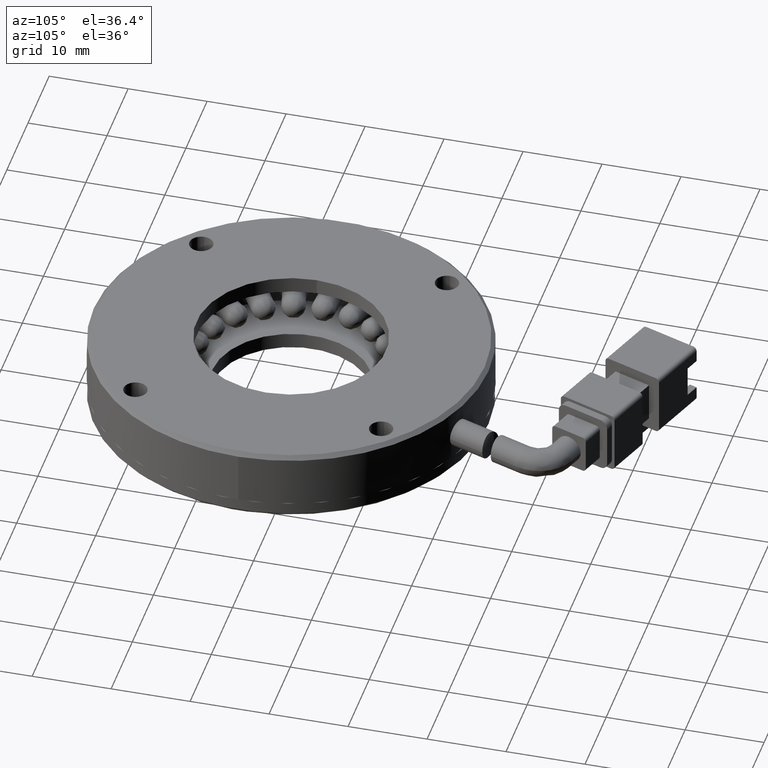
[diagram: clean part render]
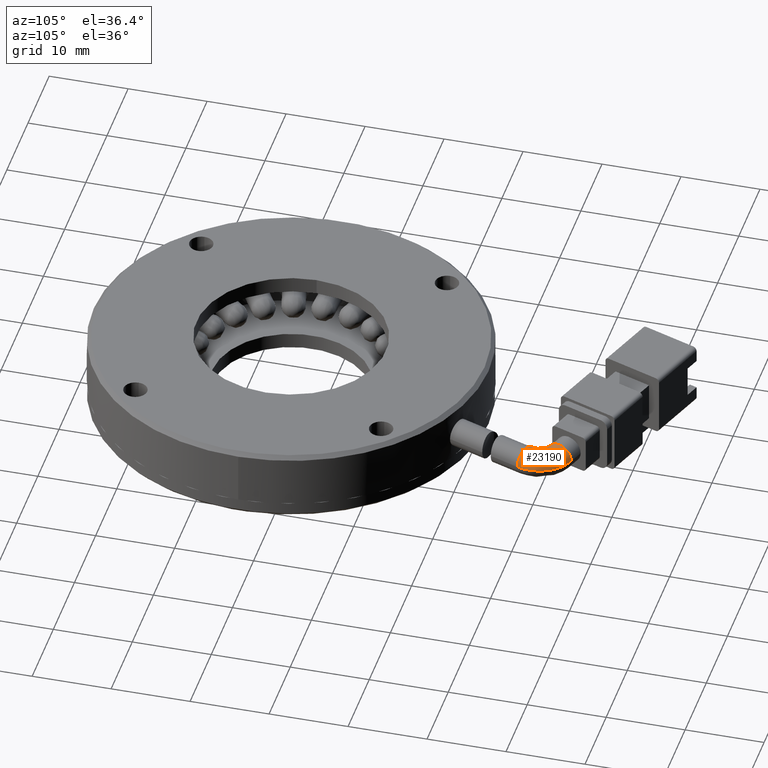
[diagram: same view with one face highlighted and labeled with its STEP entity id]
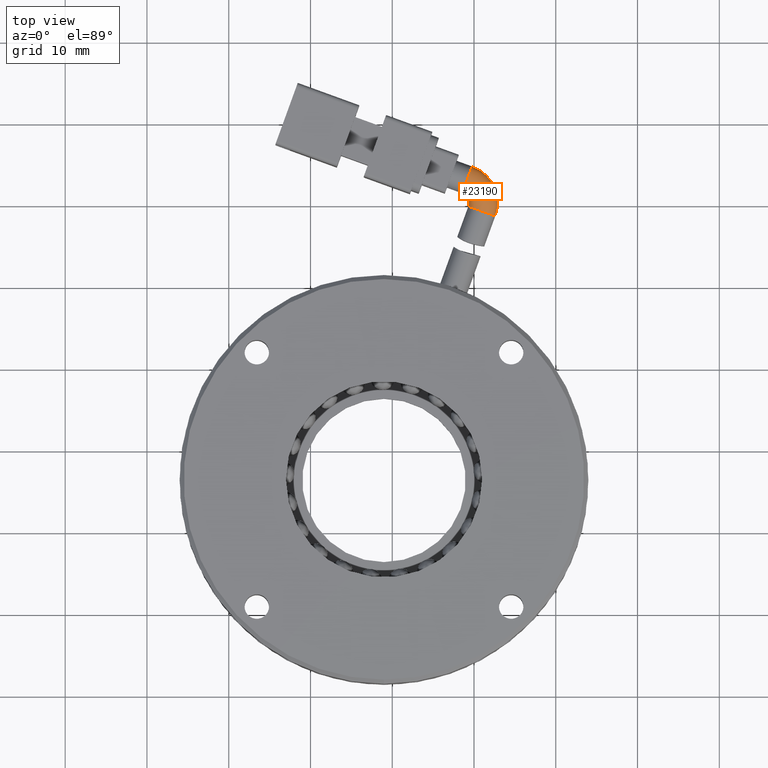
[diagram: same view with one face highlighted and labeled with its STEP entity id]
A machine part, auxiliary view. The second image highlights one B-rep face of the part: STEP entity #23190.
A second angle (top view) of the same face is appended — the face is thin or edge-on in the first view.
In plain terms, the highlighted face is a freeform B-spline surface patch.
Its self-contained STEP definition (entity closure, byte-faithful):
#143 = CARTESIAN_POINT ( 'NONE',  ( -106.4522803343568600, 41.33666212137087800, -0.4999999999999375500 ) ) ;
#492 = DIRECTION ( 'NONE',  ( 0.9396926207859087600, -0.3420201433256679900, 0.0000000000000000000 ) ) ;
#600 = CARTESIAN_POINT ( 'NONE',  ( -110.6928706235456300, 39.91905145723701100, -0.4999999999999373300 ) ) ;
#1425 = CIRCLE ( 'NONE', #13532, 1.250000000000008700 ) ;
#2164 = CARTESIAN_POINT ( 'NONE',  ( -110.2428907187310900, 44.81011658512714000, 3.000000000000061700 ) ) ;
#2528 = CARTESIAN_POINT ( 'NONE',  ( -107.4039464507949900, 38.72198095559715400, -0.4999999999999383300 ) ) ;
#2788 = CIRCLE ( 'NONE', #25809, 4.750000000000001800 ) ;
#3193 = VERTEX_POINT ( 'NONE', #6022 ) ;
#3227 = CIRCLE ( 'NONE', #3860, 1.749999999999996200 ) ;
#3860 = AXIS2_PLACEMENT_3D ( 'NONE', #18666, #6766, #20681 ) ;
#4556 = CARTESIAN_POINT ( 'NONE',  ( -106.4522803343568600, 41.33666212137088500, 3.000000000000062200 ) ) ;
#6022 = CARTESIAN_POINT ( 'NONE',  ( -110.6928706235456600, 39.91905145723699600, -0.4999999999999376600 ) ) ;
#6552 = CARTESIAN_POINT ( 'NONE',  ( -111.4399612203709800, 41.52119241237646500, 3.000000000000061700 ) ) ;
#6766 = DIRECTION ( 'NONE',  ( -0.9396926207859080900, 0.3420201433256694900, 2.200085921048893100E-016 ) ) ;
#7826 = CARTESIAN_POINT ( 'NONE',  ( -111.8674863995280300, 40.34657663639407600, -0.4999999999999373300 ) ) ;
#7881 = CARTESIAN_POINT ( 'NONE',  ( -110.2428907187311000, 44.81011658512712600, -0.4999999999999375500 ) ) ;
#8516 = CARTESIAN_POINT ( 'NONE',  ( -110.4424321718514100, 40.60712544823011400, 3.000000000000062200 ) ) ;
#8884 = DIRECTION ( 'NONE',  ( -2.838830328892222800E-018, -1.846718983974339600E-018, -1.000000000000000000 ) ) ;
#9817 = DIRECTION ( 'NONE',  ( 0.9396926207859080900, -0.3420201433256696000, 0.0000000000000000000 ) ) ;
#10530 = CARTESIAN_POINT ( 'NONE',  ( -111.4399612203709600, 41.52119241237646500, -0.4999999999999373300 ) ) ;
#10932 = EDGE_CURVE ( 'NONE', #15752, #25042, #3227, .T. ) ;
#11193 = AXIS2_PLACEMENT_3D ( 'NONE', #24348, #12422, #492 ) ;
#11801 = EDGE_CURVE ( 'NONE', #3193, #25695, #17780, .T. ) ;
#12092 = CARTESIAN_POINT ( 'NONE',  ( -107.6282095529573900, 43.85845046868904300, -0.4999999999999375500 ) ) ;
#12422 = DIRECTION ( 'NONE',  ( 0.3420201433256692700, 0.9396926207859082100, -2.706285357870903100E-018 ) ) ;
#12523 = CARTESIAN_POINT ( 'NONE',  ( -110.4424321718514100, 40.60712544823010000, -0.4999999999999372700 ) ) ;
#13221 = ORIENTED_EDGE ( 'NONE', *, *, #10932, .F. ) ;
#13532 = AXIS2_PLACEMENT_3D ( 'NONE', #7826, #21762, #9817 ) ;
#14076 = CARTESIAN_POINT ( 'NONE',  ( -107.4039464507949600, 38.72198095559716100, -0.4999999999999375500 ) ) ;
#15445 = ORIENTED_EDGE ( 'NONE', *, *, #23553, .T. ) ;
#15752 = VERTEX_POINT ( 'NONE', #20806 ) ;
#15999 = CARTESIAN_POINT ( 'NONE',  ( -110.2428907187311000, 44.81011658512714000, -0.4999999999999375500 ) ) ;
#16095 = CARTESIAN_POINT ( 'NONE',  ( -107.6282095529574100, 43.85845046868904300, 3.000000000000062200 ) ) ;
#17563 = ORIENTED_EDGE ( 'NONE', *, *, #11801, .T. ) ;
#17647 = FACE_OUTER_BOUND ( 'NONE', #24951, .T. ) ;
#17780 = CIRCLE ( 'NONE', #11193, 1.749999999999996200 ) ;
#18436 = CARTESIAN_POINT ( 'NONE',  ( -107.4039464507949600, 38.72198095559716100, 3.000000000000061700 ) ) ;
#18666 = CARTESIAN_POINT ( 'NONE',  ( -110.8414259695510100, 43.16565449875177100, -0.4999999999999204500 ) ) ;
#19388 = EDGE_CURVE ( 'NONE', #25042, #25695, #2788, .T. ) ;
#19810 = ORIENTED_EDGE ( 'NONE', *, *, #19388, .F. ) ;
#19881 =( BOUNDED_SURFACE ( )  B_SPLINE_SURFACE ( 3, 3, ( 
 ( #15999, #12092, #143, #14076 ),
 ( #2164, #16095, #4556, #18436 ),
 ( #6552, #20461, #8516, #22485 ),
 ( #10530, #24450, #12523, #600 ) ),
 .UNSPECIFIED., .F., .F., .F. ) 
 B_SPLINE_SURFACE_WITH_KNOTS ( ( 4, 4 ),
 ( 4, 4 ),
 ( 0.0000000000000000000, 1.000000000000000000 ),
 ( 0.0000000000000000000, 1.000000000000000000 ),
 .UNSPECIFIED. ) 
 GEOMETRIC_REPRESENTATION_ITEM ( )  RATIONAL_B_SPLINE_SURFACE ( (
 ( 1.000000000000000000, 0.8047378541243658300, 0.8047378541243658300, 1.000000000000000000),
 ( 0.3333333333333333700, 0.2682459513747886300, 0.2682459513747886300, 0.3333333333333333700),
 ( 0.3333333333333333700, 0.2682459513747886300, 0.2682459513747886300, 0.3333333333333333700),
 ( 1.000000000000000000, 0.8047378541243658300, 0.8047378541243658300, 1.000000000000000000) ) ) 
 REPRESENTATION_ITEM ( '' )  SURFACE ( )  );
#20461 = CARTESIAN_POINT ( 'NONE',  ( -110.7518872293779000, 41.27075396068224900, 3.000000000000062200 ) ) ;
#20681 = DIRECTION ( 'NONE',  ( 0.3420201433256679900, 0.9396926207859087600, -6.195440985631467600E-017 ) ) ;
#20806 = CARTESIAN_POINT ( 'NONE',  ( -111.4399612203709300, 41.52119241237645000, -0.4999999999999373300 ) ) ;
#20837 = CARTESIAN_POINT ( 'NONE',  ( -111.8674863995280300, 40.34657663639407600, -0.4999999999999375500 ) ) ;
#21762 = DIRECTION ( 'NONE',  ( -2.838830328892222800E-018, -1.846718983974339600E-018, -1.000000000000000000 ) ) ;
#22485 = CARTESIAN_POINT ( 'NONE',  ( -110.6928706235456300, 39.91905145723701100, 3.000000000000061700 ) ) ;
#22835 = DIRECTION ( 'NONE',  ( 0.9396926207859085400, -0.3420201433256683800, 0.0000000000000000000 ) ) ;
#23190 = ADVANCED_FACE ( 'NONE', ( #17647 ), #19881, .T. ) ;
#23553 = EDGE_CURVE ( 'NONE', #15752, #3193, #1425, .T. ) ;
#24348 = CARTESIAN_POINT ( 'NONE',  ( -109.0484085371703000, 39.32051620641706800, -0.4999999999999375500 ) ) ;
#24450 = CARTESIAN_POINT ( 'NONE',  ( -110.7518872293778900, 41.27075396068223500, -0.4999999999999372700 ) ) ;
#24951 = EDGE_LOOP ( 'NONE', ( #13221, #15445, #17563, #19810 ) ) ;
#25042 = VERTEX_POINT ( 'NONE', #7881 ) ;
#25695 = VERTEX_POINT ( 'NONE', #2528 ) ;
#25809 = AXIS2_PLACEMENT_3D ( 'NONE', #20837, #8884, #22835 ) ;